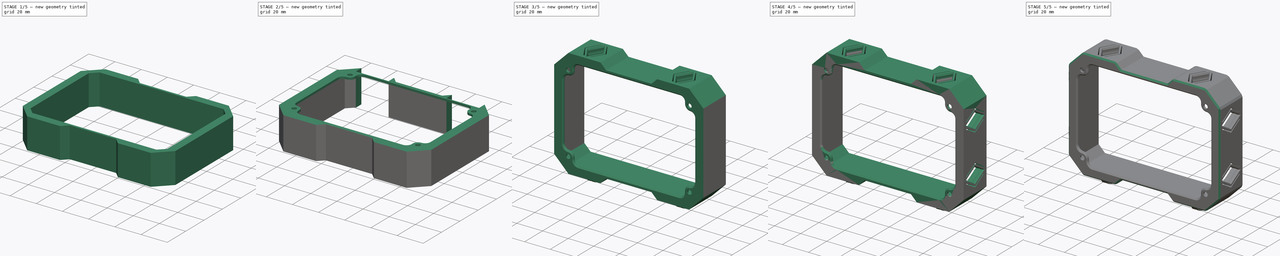
[diagram: build sequence overview — one tinted view per stage of 5, left to right]
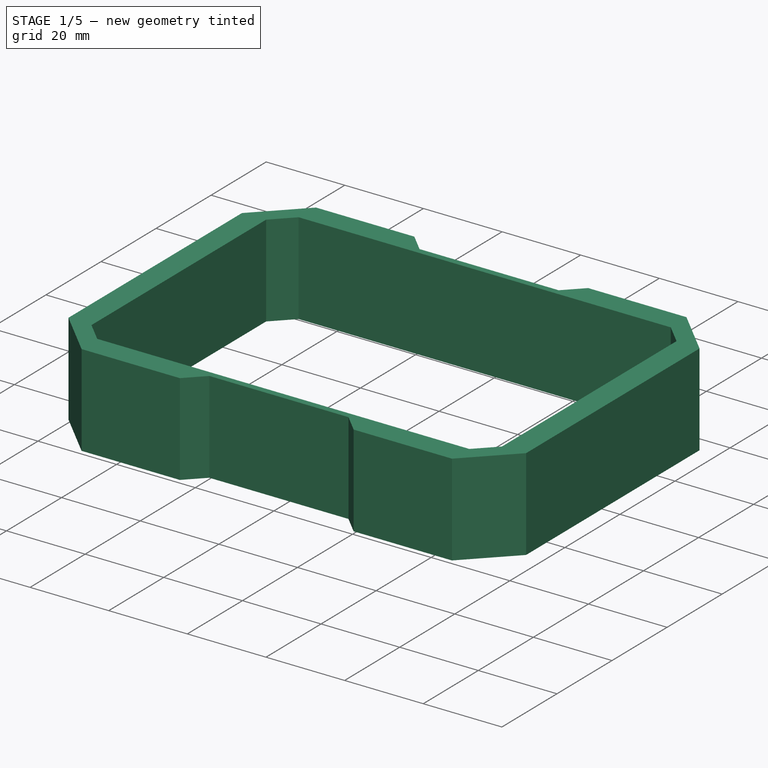
[diagram: stage 1 of 5 — iso view after this stage's code; geometry added in this stage tinted green]
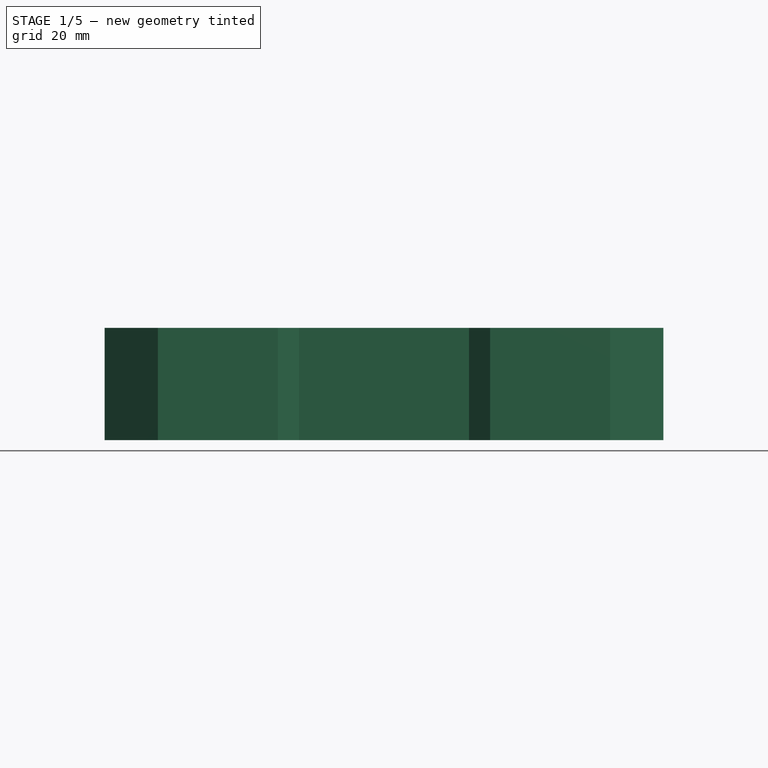
[diagram: stage 1 of 5 — front view after this stage's code; geometry added in this stage tinted green]
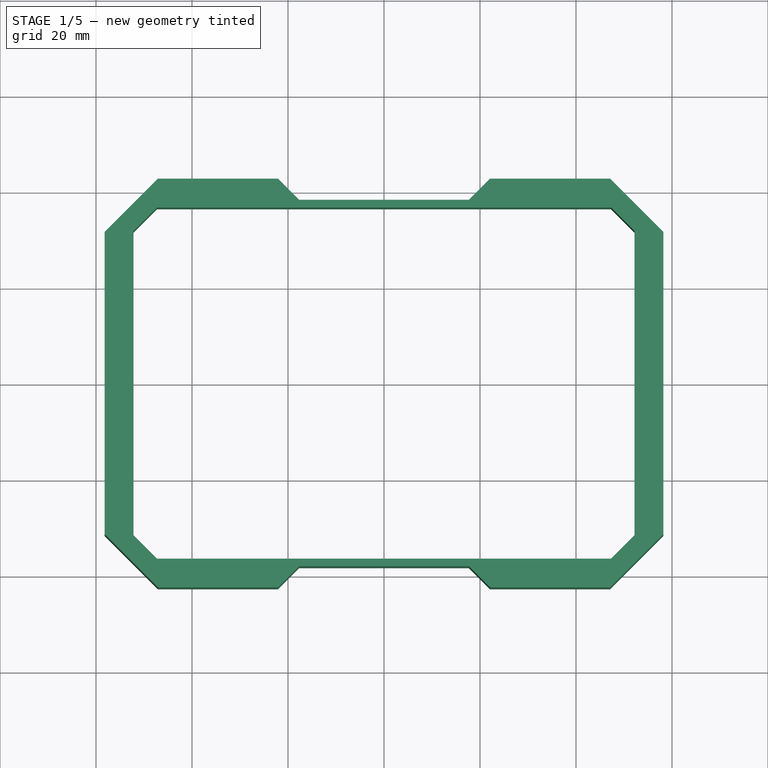
[diagram: stage 1 of 5 — top view after this stage's code; geometry added in this stage tinted green]
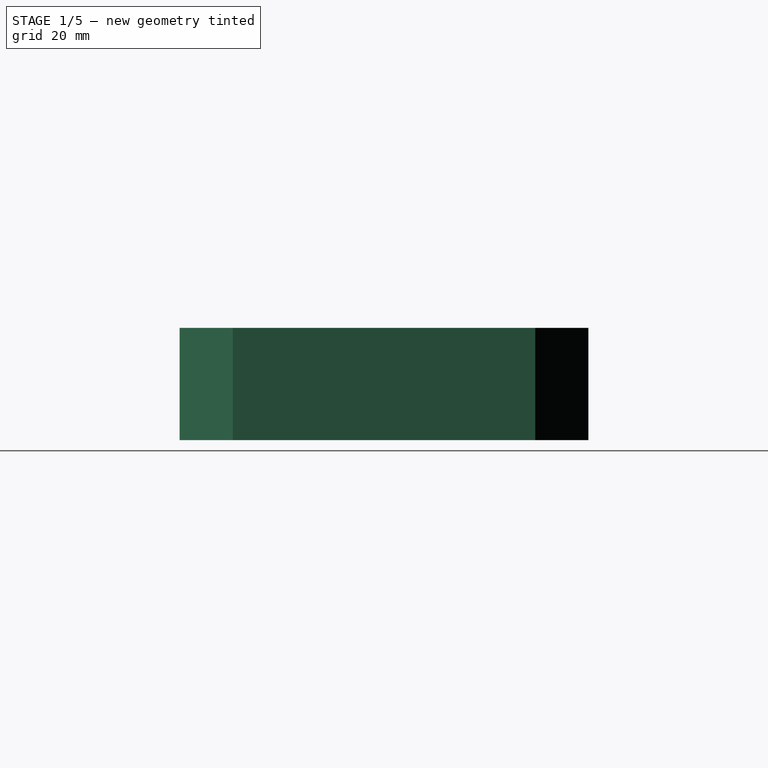
[diagram: stage 1 of 5 — right view after this stage's code; geometry added in this stage tinted green]
FCSTD DOCUMENT  (FreeCAD 1.1R20251111 (Git shallow))
Label: K97-120_DockLink-Frame_front
License: All rights reserved
LicenseURL: https://en.wikipedia.org/wiki/All_rights_reserved
objects: App::Link×9, Sketcher::SketchObject×6, Part::Feature×5, PartDesign::Pocket×4, App::Point×3, PartDesign::Body×3, PartDesign::Chamfer×3, PartDesign::Pad×2, PartDesign::Mirrored×2, Part::MultiFuse×2, PartDesign::FeatureBase×2, PartDesign::Fillet×1
note: 60 computed .brp shape members not serialized (recipe doc carries the construction recipe); baked Part::Feature solids carry a one-line shape summary decoded from their .brp
EXTERNAL_REF file=../../FreeCAD_DElements/DockLink/DockLink_female.FCStd obj=Body
EXTERNAL_REF file=../../FreeCAD_DElements/DockLink/DockLink_male.FCStd obj=Body

FEATURE [Part::Feature] Wire
  shape: bbox 5.6 x 5.6 x 2e-07 mm, 0 faces, 0 solids (baked)
FEATURE [Part::Feature] Wire001
  shape: bbox 5.6 x 5.6 x 2e-07 mm, 0 faces, 0 solids (baked)
FEATURE [Part::Feature] Wire002
  shape: bbox 5.6 x 5.6 x 2e-07 mm, 0 faces, 0 solids (baked)
FEATURE [Part::Feature] Wire003
  shape: bbox 5.6 x 5.6 x 2e-07 mm, 0 faces, 0 solids (baked)
FEATURE [Part::Feature] Wire004
  shape: bbox 104 x 72.99 x 2e-07 mm, 0 faces, 0 solids (baked)
FEATURE [Sketcher::SketchObject] Sketch
  ArcFitTolerance = 1e-06
  ExternalTypes = [0]
  FullyConstrained = true
  MakeInternals = false
  Placement = pos=(0,0,0.75) rot=(0,0,1;0rad)
  sketch-geometry (16):
    g0: ArcOfCircle [constr] CenterX=49.99 CenterY=30.66 CenterZ=0 NormalX=0 NormalY=0 NormalZ=1 AngleXU=0 Radius=2.00394 StartAngle=0.00171116 EndAngle=0.785083
    g1: LineSegment [constr] StartX=51.4075 StartY=32.0766 StartZ=0 EndX=47.58 EndY=35.9 EndZ=0
    g2: ArcOfCircle [constr] CenterX=46.17 CenterY=34.49 CenterZ=0 NormalX=0 NormalY=0 NormalZ=1 AngleXU=0 Radius=1.99404 StartAngle=0.785398 EndAngle=1.57287
    g3: LineSegment [constr] StartX=46.1659 StartY=36.484 StartZ=0 EndX=0 EndY=36.484 EndZ=0
    g4: LineSegment [constr] StartX=51.9939 StartY=30.6634 StartZ=0 EndX=51.9939 EndY=0 EndZ=0
    g5: Circle [constr] CenterX=47.29 CenterY=30.44 CenterZ=0 NormalX=0 NormalY=0 NormalZ=1 AngleXU=0 Radius=1.7
    g6: LineSegment StartX=0 StartY=38.184 StartZ=0 EndX=17.7 EndY=38.184 EndZ=0
    g7: LineSegment StartX=17.7 StartY=38.184 StartZ=0 EndX=22.1 EndY=42.584 EndZ=0
    g8: LineSegment StartX=22.1 StartY=42.584 StartZ=0 EndX=47.1 EndY=42.584 EndZ=0
    g9: LineSegment StartX=0 StartY=38.184 StartZ=0 EndX=0 EndY=36.584 EndZ=0
    g10: LineSegment StartX=0 StartY=36.584 StartZ=0 EndX=47.3197 EndY=36.584 EndZ=0
    g11: LineSegment StartX=47.3197 StartY=36.584 StartZ=0 EndX=52.1939 EndY=31.7149 EndZ=0
    g12: LineSegment StartX=52.1939 StartY=31.7149 StartZ=0 EndX=52.1939 EndY=0 EndZ=0
    g13: LineSegment StartX=47.1 StartY=42.584 StartZ=0 EndX=58.1939 EndY=31.5017 EndZ=0
    g14: LineSegment StartX=58.1939 StartY=31.5017 StartZ=0 EndX=58.1939 EndY=0 EndZ=0
    g15: LineSegment StartX=52.1939 StartY=0 StartZ=0 EndX=58.1939 EndY=0 EndZ=0
  constraints (53):
    c: Coincident(g1,g2)
    c: Coincident(g0,g1)
    c: Coincident(g3,g2)
    c: PointOnObject(g3,g-2)
    c: Horizontal(g3)
    c: Coincident(g4,g0)
    c: PointOnObject(g4,g-1)
    c: Vertical(g4)
    c: Distance(g5,g-1) = 30.44
    c: Distance(g5,g-2) = 47.29
    c: Diameter(g5) = 3.4
    c: Distance(g0,g-1) = 30.66
    c: Distance(g0,g-2) = 49.99
    c: Distance(g2,g-2) = 46.17
    c: Distance(g2,g-1) = 34.49
    c: Distance(g2,g1) = 1.53
    c: Distance(g0,g0) = 1.53
    c: Distance(g1,g1) = 5.41
    c: Angle(g1,g-1) = 0.784875
    c: Distance(g1,g-1) = 35.9
    c: Distance(g1,g-2) = 47.58
    c: PointOnObject(g6,g-2)
    c: Horizontal(g6)
    c: Coincident(g7,g6)
    c: Coincident(g8,g7)
    c: Horizontal(g8)
    c: Coincident(g9,g6)
    c: PointOnObject(g9,g-2)
    c: Coincident(g10,g9)
    c: Horizontal(g10)
    c: Coincident(g11,g10)
    c: Coincident(g12,g11)
    c: PointOnObject(g12,g-1)
    c: Vertical(g12)
    c: Distance(g12,g4) = 0.2
    c: Parallel(g11,g1)
    c: DistanceY(g9,g9) = 1.6
    c: Coincident(g13,g8)
    c: Coincident(g14,g13)
    c: PointOnObject(g14,g-1)
    c: Vertical(g14)
    c: Coincident(g15,g12)
    c: Coincident(g15,g14)
    c: DistanceX(g15,g15) = 6
    c: Parallel(g11,g13)
    c: Angle(g7,g6) = 2.35619
    c: Distance(g10,g8) = 6
    c: DistanceX(g8,g8) = 25
    c: Distance(g3,g10) = 0.1
    c: Distance(g11,g1) = 0.3
    c: DistanceX(g-1,g8) = 47.1
    c: Distance(g5,g-2) = 47.29
    c: Distance(g5,g-1) = 30.44
FEATURE [App::Point] Origin001
  Role = Origin
FEATURE [PartDesign::Pad] Pad
  Direction = (0,0,1)
  Length = 23.4
  Length2 = 10
  Placement = pos=(0,0,0.75) rot=(0,0,1;0rad)
  Profile = -> Sketch
  ReferenceAxis = -> Sketch [N_Axis]
  Refine = true
  Reversed = true
  SideType = 0
  Suppressed = false
  Type = 0
  Type2 = 0
FEATURE [PartDesign::Mirrored] Mirrored
  BaseFeature = -> Pad
  MirrorPlane = -> XZ_Plane
  Placement = pos=(0,0,0.75) rot=(0,0,1;0rad)
  Refine = true
  Suppressed = false
  TransformMode = 1
FEATURE [PartDesign::Mirrored] Mirrored001
  BaseFeature = -> Mirrored
  MirrorPlane = -> YZ_Plane
  Originals = -> [Mirrored]
  Placement = pos=(0,0,0.75) rot=(0,0,1;0rad)
  Refine = true
  Suppressed = false
  TransformMode = 1
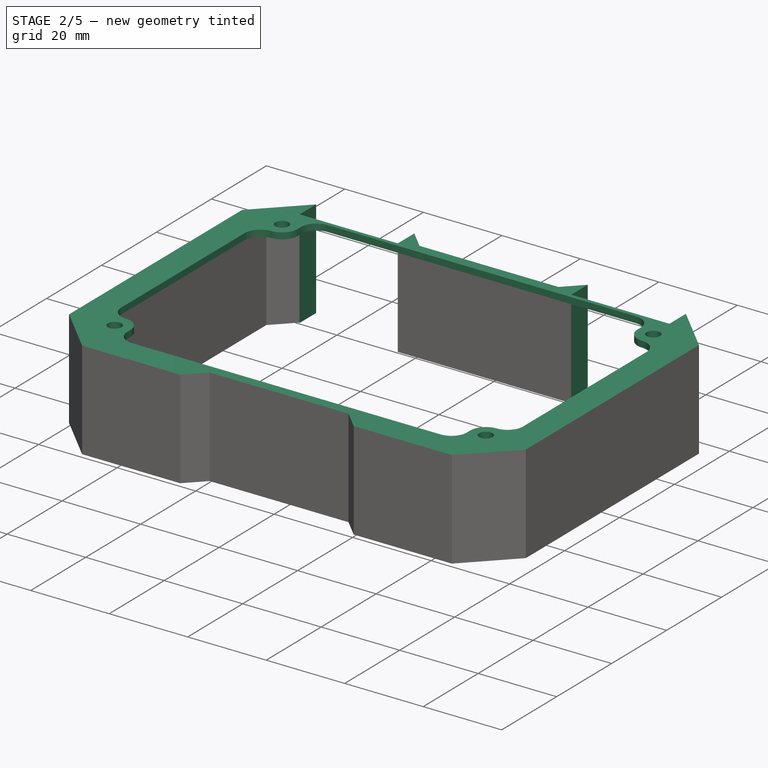
[diagram: stage 2 of 5 — iso view after this stage's code; geometry added in this stage tinted green]
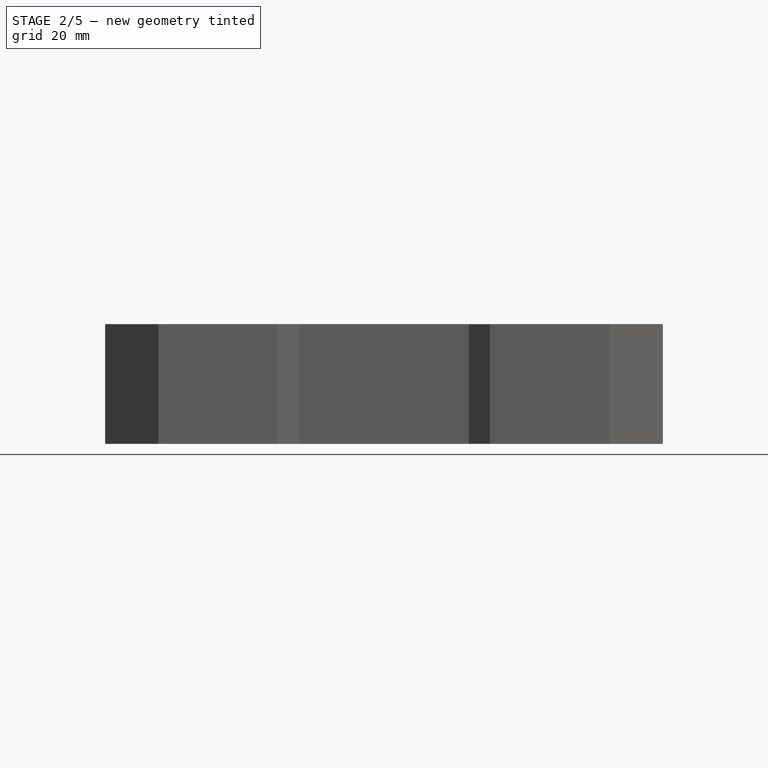
[diagram: stage 2 of 5 — front view after this stage's code; geometry added in this stage tinted green]
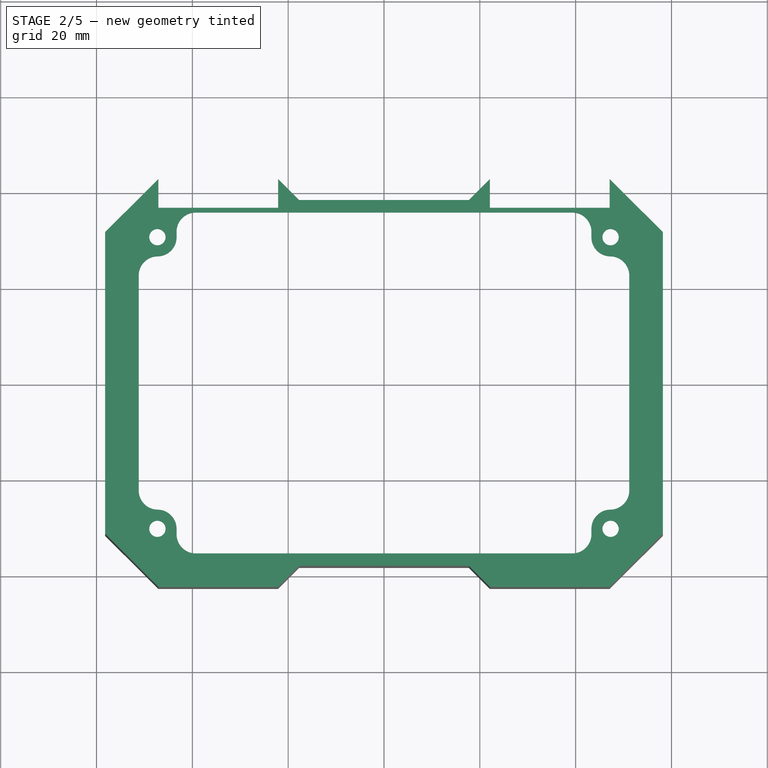
[diagram: stage 2 of 5 — top view after this stage's code; geometry added in this stage tinted green]
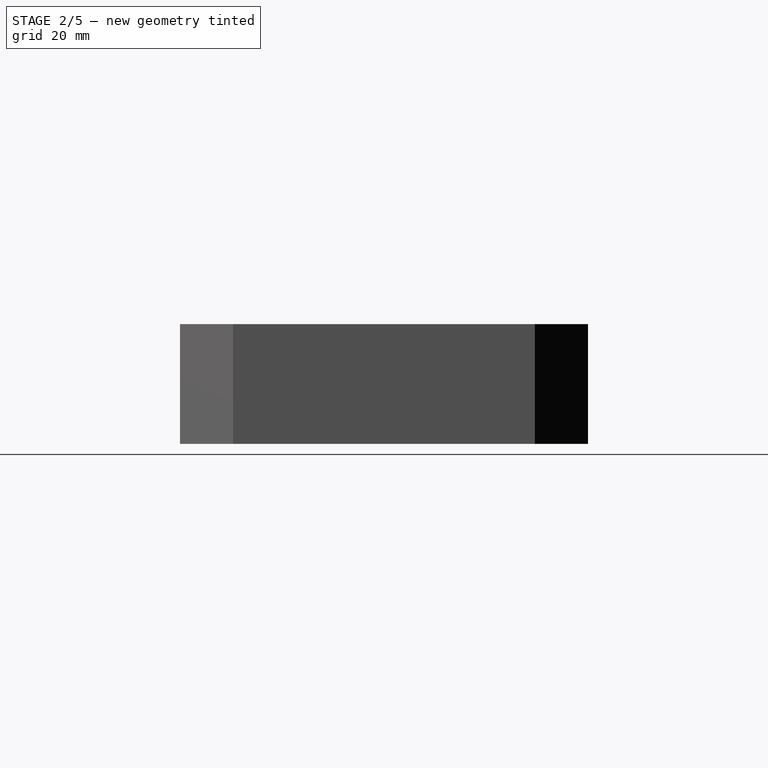
[diagram: stage 2 of 5 — right view after this stage's code; geometry added in this stage tinted green]
FEATURE [Sketcher::SketchObject] Sketch001
  ArcFitTolerance = 1e-06
  AttachmentSupport = -> [Mirrored001]
  ExternalGeometry = -> [Mirrored001]
  ExternalTypes = [0,0,0,0,0,0,0,0,0,0,0,0,0,0,0,0]
  FullyConstrained = true
  MakeInternals = false
  MapMode = 5
  Placement = pos=(0,0,0.75) rot=(0,0,1;0rad)
  sketch-geometry (25):
    g0: LineSegment [constr] StartX=-47.29 StartY=30.44 StartZ=0 EndX=-47.29 EndY=-30.44 EndZ=0
    g1: LineSegment [constr] StartX=-47.29 StartY=-30.44 StartZ=0 EndX=47.29 EndY=-30.44 EndZ=0
    g2: LineSegment [constr] StartX=47.29 StartY=-30.44 StartZ=0 EndX=47.29 EndY=30.44 EndZ=0
    g3: LineSegment [constr] StartX=47.29 StartY=30.44 StartZ=0 EndX=-47.29 EndY=30.44 EndZ=0
    g4: GeomPoint [constr] X=0 Y=0 Z=0
    g5: Circle CenterX=47.29 CenterY=30.44 CenterZ=0 NormalX=0 NormalY=0 NormalZ=1 AngleXU=0 Radius=1.7
    g6: Circle CenterX=47.29 CenterY=-30.44 CenterZ=0 NormalX=0 NormalY=0 NormalZ=1 AngleXU=0 Radius=1.7
    g7: Circle CenterX=-47.29 CenterY=-30.44 CenterZ=0 NormalX=0 NormalY=0 NormalZ=1 AngleXU=0 Radius=1.7
    g8: Circle CenterX=-47.29 CenterY=30.44 CenterZ=0 NormalX=0 NormalY=0 NormalZ=1 AngleXU=0 Radius=1.7
    g9: ArcOfCircle CenterX=-47.29 CenterY=30.44 CenterZ=0 NormalX=0 NormalY=0 NormalZ=1 AngleXU=0 Radius=4 StartAngle=4.71239 EndAngle=6.28319
    g10: ArcOfCircle CenterX=47.29 CenterY=30.44 CenterZ=0 NormalX=0 NormalY=0 NormalZ=1 AngleXU=0 Radius=4 StartAngle=3.14159 EndAngle=4.71239
    g11: ArcOfCircle CenterX=47.29 CenterY=-30.44 CenterZ=0 NormalX=0 NormalY=0 NormalZ=1 AngleXU=0 Radius=4 StartAngle=1.5708 EndAngle=3.14159
    g12: ArcOfCircle CenterX=-47.29 CenterY=-30.44 CenterZ=0 NormalX=0 NormalY=0 NormalZ=1 AngleXU=0 Radius=4 StartAngle=0 EndAngle=1.5708
    g13: LineSegment StartX=-43.29 StartY=30.44 StartZ=0 EndX=-43.29 EndY=35.584 EndZ=0
    g14: LineSegment StartX=-43.29 StartY=35.584 StartZ=0 EndX=43.29 EndY=35.584 EndZ=0
    g15: LineSegment StartX=43.29 StartY=35.584 StartZ=0 EndX=43.29 EndY=30.44 EndZ=0
    g16: LineSegment StartX=47.29 StartY=26.44 StartZ=0 EndX=51.1939 EndY=26.44 EndZ=0
    g17: LineSegment StartX=47.29 StartY=-26.44 StartZ=0 EndX=51.1939 EndY=-26.44 EndZ=0
    g18: LineSegment StartX=51.1939 StartY=-26.44 StartZ=0 EndX=51.1939 EndY=26.44 EndZ=0
    g19: LineSegment StartX=43.29 StartY=-30.44 StartZ=0 EndX=43.29 EndY=-35.584 EndZ=0
    g20: LineSegment StartX=43.29 StartY=-35.584 StartZ=0 EndX=-43.29 EndY=-35.584 EndZ=0
    g21: LineSegment StartX=-43.29 StartY=-35.584 StartZ=0 EndX=-43.29 EndY=-30.44 EndZ=0
    g22: LineSegment StartX=-47.29 StartY=-26.44 StartZ=0 EndX=-51.1939 EndY=-26.44 EndZ=0
    g23: LineSegment StartX=-51.1939 StartY=-26.44 StartZ=0 EndX=-51.1939 EndY=26.44 EndZ=0
    g24: LineSegment StartX=-51.1939 StartY=26.44 StartZ=0 EndX=-47.29 EndY=26.44 EndZ=0
  constraints (68):
    c: Coincident(g0,g1)
    c: Coincident(g1,g2)
    c: Coincident(g2,g3)
    c: Coincident(g3,g0)
    c: Vertical(g0)
    c: Vertical(g2)
    c: Horizontal(g1)
    c: Horizontal(g3)
    c: Symmetric(g2,g0,g4)
    c: Coincident(g4,g-1)
    c: Distance(g2,g-2) = 47.29
    c: Distance(g3,g-1) = 30.44
    c: Coincident(g5,g2)
    c: Coincident(g6,g1)
    c: Coincident(g7,g0)
    c: Coincident(g8,g0)
    c: Equal(g8,g5)
    c: Equal(g5,g6)
    c: Equal(g7,g6)
    c: Diameter(g6) = 3.4
    c: Coincident(g9,g0)
    c: PointOnObject(g9,g0)
    c: PointOnObject(g9,g3)
    c: Coincident(g10,g2)
    c: PointOnObject(g10,g3)
    c: PointOnObject(g10,g2)
    c: Coincident(g11,g1)
    c: PointOnObject(g11,g1)
    c: PointOnObject(g11,g2)
    c: Coincident(g12,g0)
    c: PointOnObject(g12,g0)
    c: PointOnObject(g12,g1)
    c: Radius(g9) = 4
    c: Equal(g9,g10)
    c: Equal(g11,g10)
    c: Equal(g12,g9)
    c: Coincident(g13,g9)
    c: Vertical(g13)
    c: Coincident(g14,g13)
    c: Horizontal(g14)
    c: Coincident(g15,g14)
    c: Coincident(g15,g10)
    c: Coincident(g16,g10)
    c: Horizontal(g16)
    c: Coincident(g17,g11)
    c: Horizontal(g17)
    c: Coincident(g18,g17)
    c: Coincident(g18,g16)
    c: Vertical(g18)
    c: Coincident(g19,g11)
    c: Vertical(g19)
    c: Coincident(g20,g19)
    c: Horizontal(g20)
    c: Coincident(g21,g20)
    c: Coincident(g21,g12)
    c: Vertical(g21)
    c: Coincident(g22,g12)
    c: Horizontal(g22)
    c: Coincident(g23,g22)
    c: Vertical(g23)
    c: Coincident(g24,g23)
    c: Coincident(g24,g9)
    c: Horizontal(g24)
    c: Distance(g-7,g14) = 2.6
    c: Vertical(g15)
    c: Distance(g-11,g18) = 7
    c: Distance(g20,g-15) = 2.6
    c: Distance(g-5,g23) = 7
FEATURE [PartDesign::Pad] Pad001
  BaseFeature = -> Mirrored001
  Direction = (0,0,1)
  Length = 1.6
  Length2 = 10
  Placement = pos=(0,0,0.75) rot=(0,0,1;0rad)
  Profile = -> Sketch001
  ReferenceAxis = -> Sketch001 [N_Axis]
  Refine = true
  SideType = 0
  Suppressed = false
  Type = 0
  Type2 = 0
FEATURE [PartDesign::Fillet] Fillet
  Base = -> Pad001 [Edge107,Edge104,Edge108,Edge111,Edge112,Edge99,Edge103,Edge100]
  BaseFeature = -> Pad001
  Placement = pos=(0,0,0.75) rot=(0,0,1;0rad)
  Radius = 4
  Refine = true
  SupportTransform = false
  Suppressed = false
  UseAllEdges = false
FEATURE [Sketcher::SketchObject] Sketch002
  ArcFitTolerance = 1e-06
  AttachmentSupport = -> [Fillet]
  ExternalGeometry = -> [Fillet]
  ExternalTypes = [0,0,0,0,0,0,0,0]
  FullyConstrained = true
  MakeInternals = false
  MapMode = 5
  Placement = pos=(0,42.584,0.75) rot=(0,0.707107,0.707107;3.14159rad)
FEATURE [PartDesign::Pocket] Pocket
  BaseFeature = -> Fillet
  Direction = (0,-1,2e-16)
  Length = 6
  Length2 = 5
  Placement = pos=(0,0,0.75) rot=(0,0,1;0rad)
  Profile = -> Sketch002
  ReferenceAxis = -> Sketch002 [N_Axis]
  Refine = true
  SideType = 0
  Suppressed = false
  Type = 0
  Type2 = 0
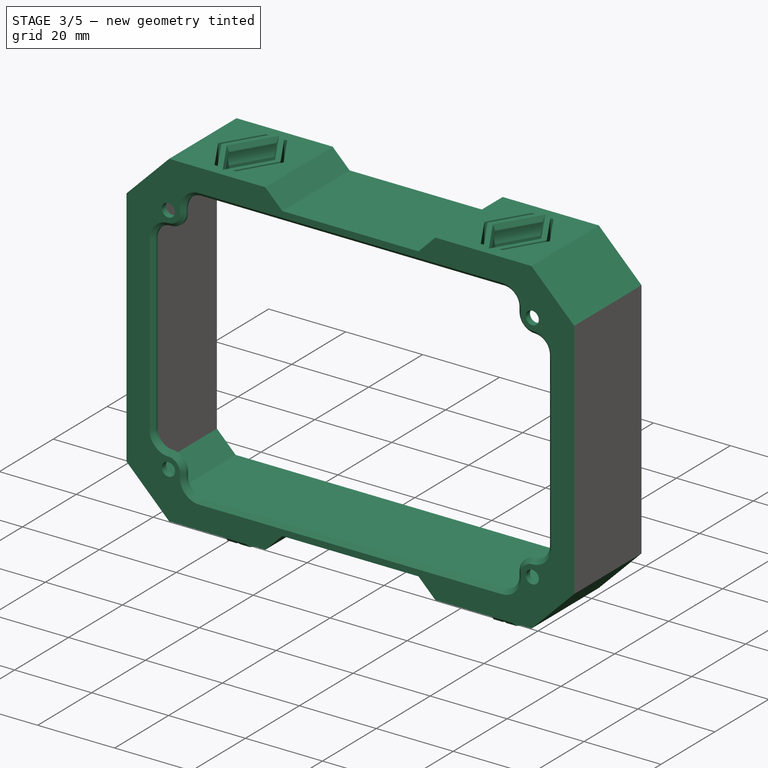
[diagram: stage 3 of 5 — iso view after this stage's code; geometry added in this stage tinted green]
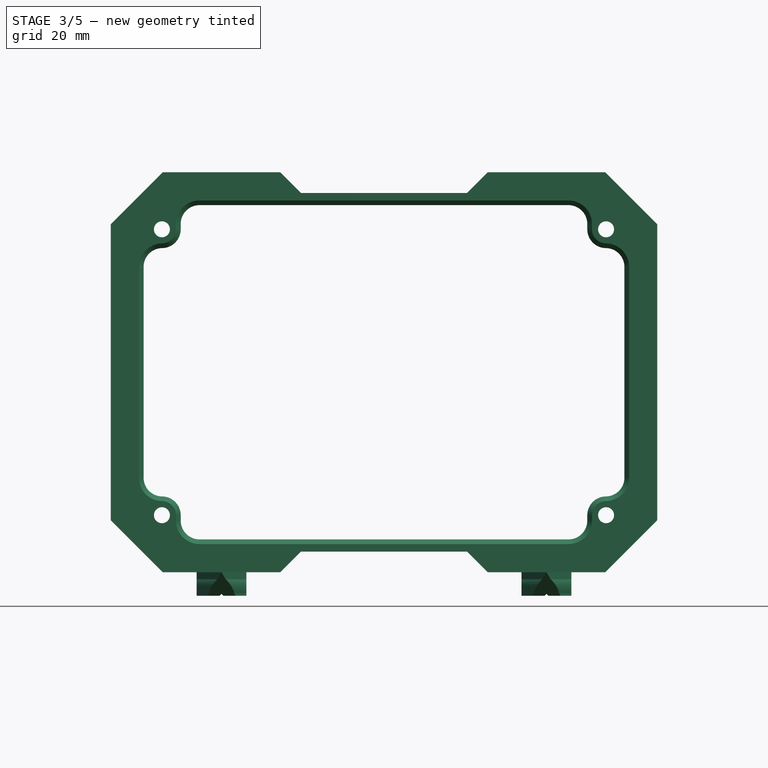
[diagram: stage 3 of 5 — front view after this stage's code; geometry added in this stage tinted green]
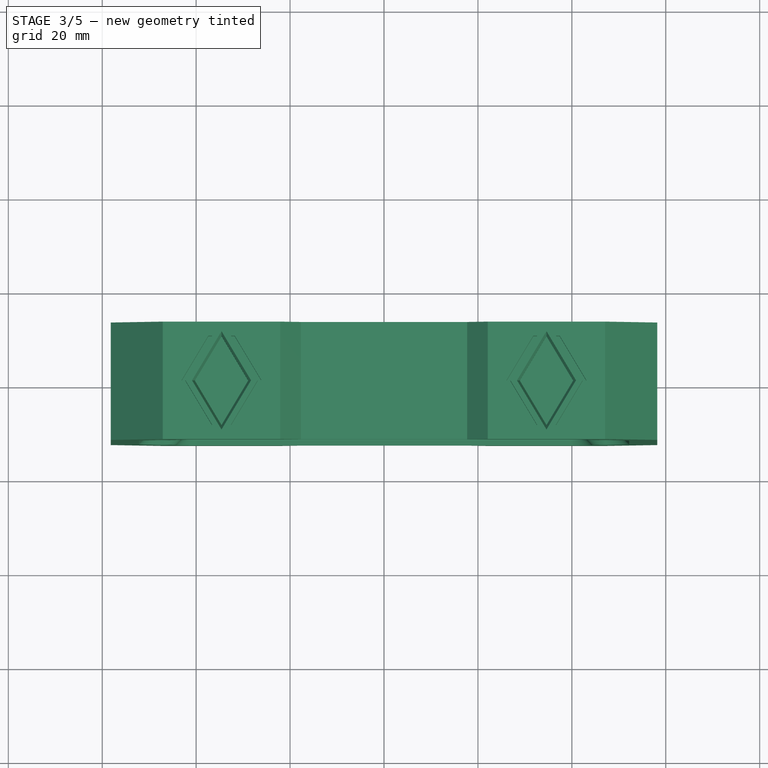
[diagram: stage 3 of 5 — top view after this stage's code; geometry added in this stage tinted green]
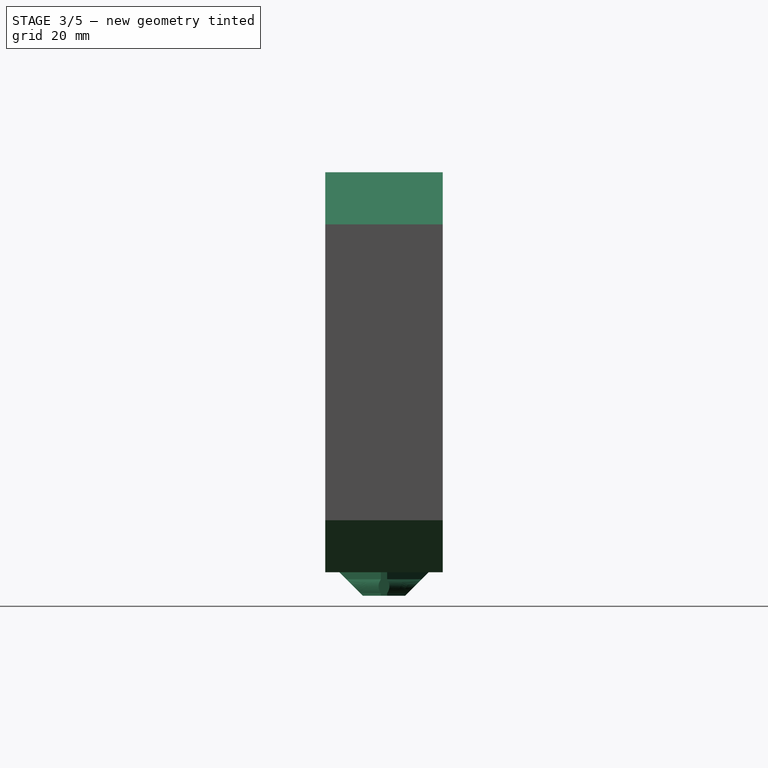
[diagram: stage 3 of 5 — right view after this stage's code; geometry added in this stage tinted green]
FEATURE [Sketcher::SketchObject] Sketch003
  ArcFitTolerance = 1e-06
  AttachmentSupport = -> [Pocket]
  ExternalGeometry = -> [Pocket]
  ExternalTypes = [0,0,0,0,0,0,0,0]
  FullyConstrained = true
  MakeInternals = false
  MapMode = 5
  Placement = pos=(0,-42.584,0.75) rot=(1,0,0;1.5708rad)
FEATURE [PartDesign::Pocket] Pocket001
  BaseFeature = -> Pocket
  Direction = (0,1,-2e-16)
  Length = 6
  Length2 = 5
  Placement = pos=(0,0,0.75) rot=(0,0,1;0rad)
  Profile = -> Sketch003
  ReferenceAxis = -> Sketch003 [N_Axis]
  Refine = true
  SideType = 0
  Suppressed = false
  Type = 0
  Type2 = 0
FEATURE [PartDesign::Body] Body
  AllowCompound = true
  Group = -> [Sketch,Pad,Mirrored,Mirrored001,Sketch001,Pad001,Fillet,Sketch002,Pocket,Sketch003,Pocket001]
  Origin = -> Origin
  Tip = -> Pocket001
FEATURE [App::Link] Body001
  LinkPlacement = pos=(0,-10.15,-10.15) rot=(1,0,0;1.5708rad)
  LinkedObject = -> Body
  Placement = pos=(0,-10.15,-10.15) rot=(1,0,0;1.5708rad)
FEATURE [App::Link] Body_DockLink_female
  LinkPlacement = pos=(-34.6,-5.96048e-06,26.434) rot=(1,0,0;0rad)
  LinkedObject = -> <external ../../FreeCAD_DElements/DockLink/DockLink_female.FCStd>#Body
  Placement = pos=(-34.6,-5.96048e-06,26.434) rot=(1,0,0;0rad)
FEATURE [App::Link] Body_DockLink_female001
  LinkPlacement = pos=(34.6,-5.96048e-06,26.434) rot=(1,0,0;0rad)
  LinkedObject = -> <external ../../FreeCAD_DElements/DockLink/DockLink_female.FCStd>#Body
  Placement = pos=(34.6,-5.96048e-06,26.434) rot=(1,0,0;0rad)
FEATURE [App::Link] Body_DockLink_male
  LinkPlacement = pos=(-34.6,7.38626e-06,-52.734) rot=(0,1,0;3.14159rad)
  LinkedObject = -> <external ../../FreeCAD_DElements/DockLink/DockLink_male.FCStd>#Body
  Placement = pos=(-34.6,7.38626e-06,-52.734) rot=(0,1,0;3.14159rad)
FEATURE [App::Link] Body_DockLink_male001
  LinkPlacement = pos=(34.6,7.38626e-06,-52.734) rot=(0,1,0;3.14159rad)
  LinkedObject = -> <external ../../FreeCAD_DElements/DockLink/DockLink_male.FCStd>#Body
  Placement = pos=(34.6,7.38626e-06,-52.734) rot=(0,1,0;3.14159rad)
FEATURE [Part::MultiFuse] Fusion
  Refine = true
  Shapes = -> [Body001,Body_DockLink_female,Body_DockLink_female001,Body_DockLink_male,Body_DockLink_male001]
FEATURE [App::Point] Origin005  label="Origin006"
  Role = Origin
FEATURE [PartDesign::FeatureBase] BaseFeature
  BaseFeature = -> Fusion
  Suppressed = false
FEATURE [PartDesign::Chamfer] Chamfer
  Angle = 45
  Base = -> BaseFeature [Edge61]
  BaseFeature = -> BaseFeature
  ChamferType = 0
  FlipDirection = false
  Refine = true
  Size = 1
  Size2 = 1
  SupportTransform = false
  Suppressed = false
  UseAllEdges = false
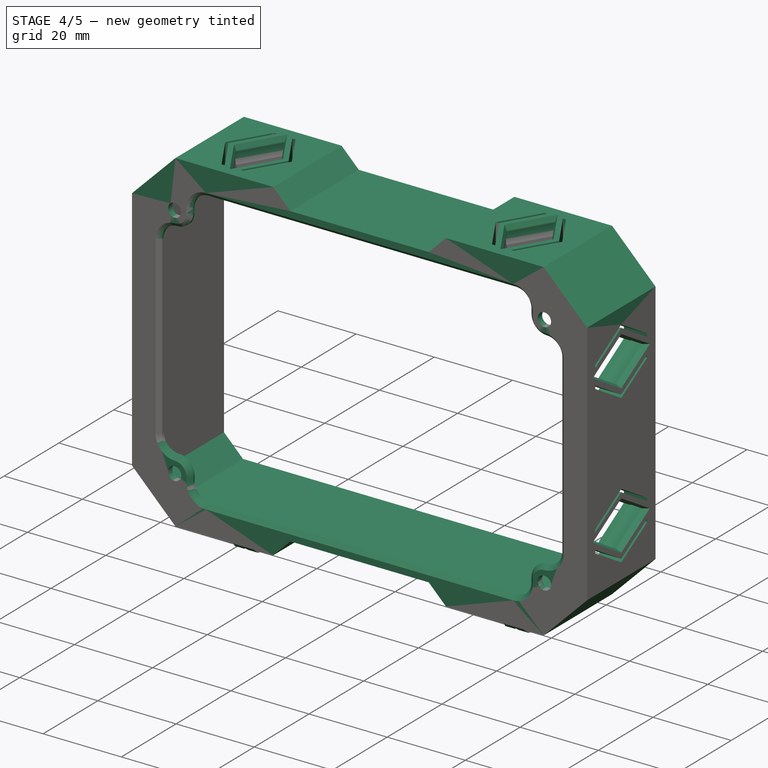
[diagram: stage 4 of 5 — iso view after this stage's code; geometry added in this stage tinted green]
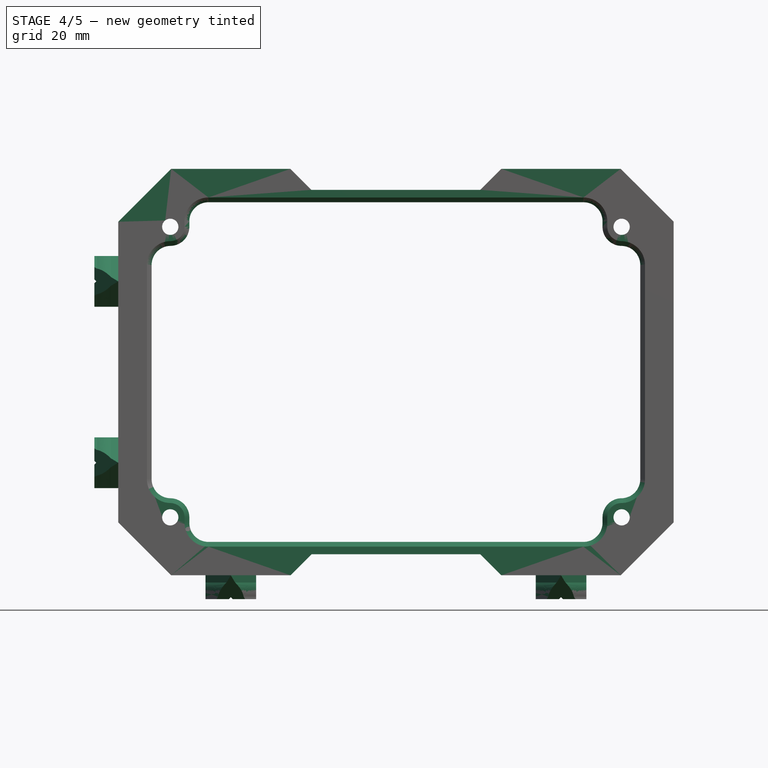
[diagram: stage 4 of 5 — front view after this stage's code; geometry added in this stage tinted green]
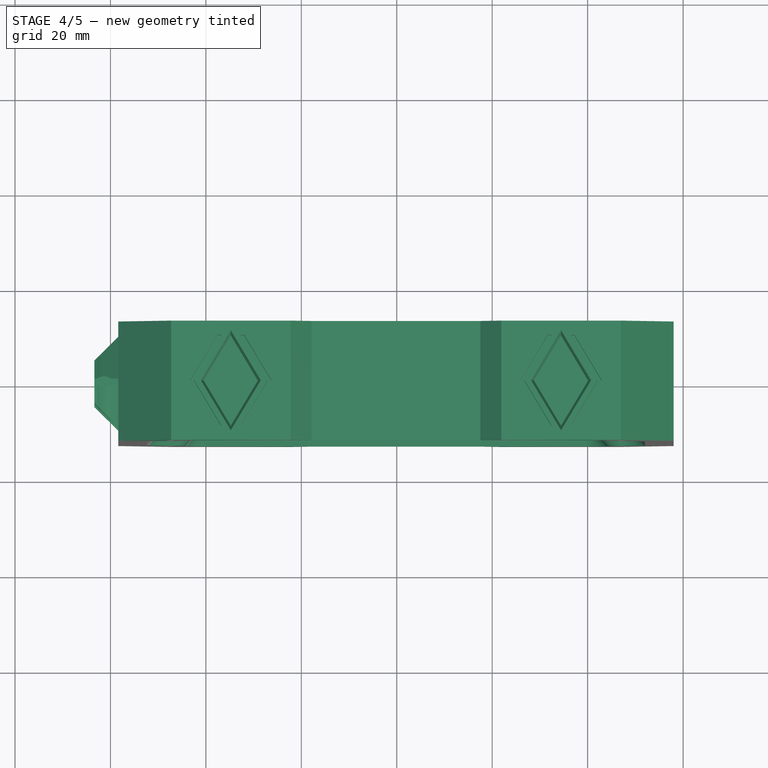
[diagram: stage 4 of 5 — top view after this stage's code; geometry added in this stage tinted green]
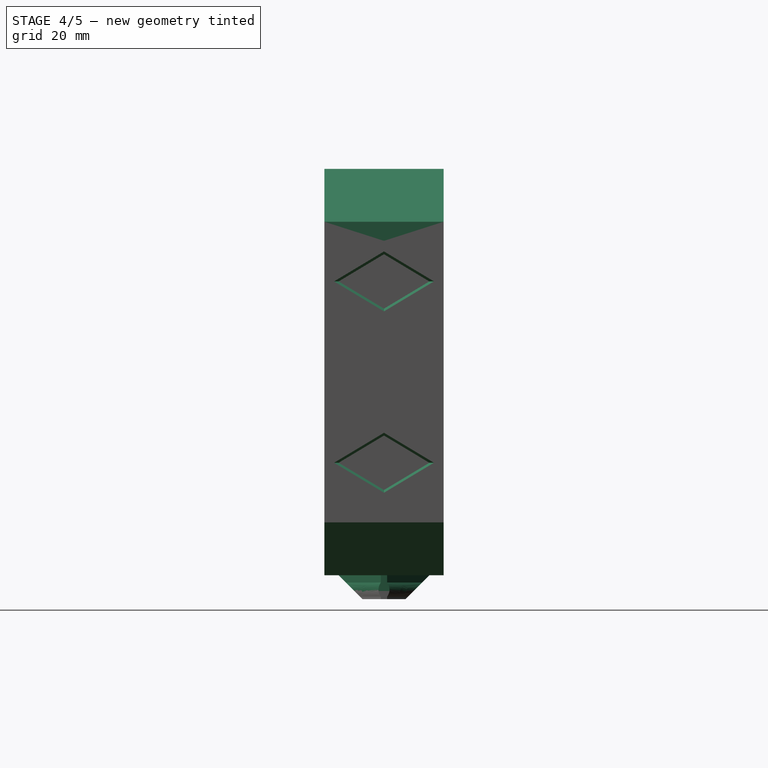
[diagram: stage 4 of 5 — right view after this stage's code; geometry added in this stage tinted green]
FEATURE [Sketcher::SketchObject] Sketch004
  ArcFitTolerance = 1e-06
  AttachmentSupport = -> [Chamfer]
  ExternalGeometry = -> [Chamfer]
  ExternalTypes = [0,0,0,0]
  FullyConstrained = true
  MakeInternals = false
  MapMode = 5
  Placement = pos=(-58.1939,1.68e-14,1.31e-14) rot=(0.57735,-0.57735,-0.57735;2.0944rad)
  sketch-geometry (6):
    g0: LineSegment StartX=-12.5 StartY=-16.6517 StartZ=0 EndX=12.5 EndY=-16.6517 EndZ=0
    g1: LineSegment StartX=-12.5 StartY=-3.64829 StartZ=0 EndX=12.5 EndY=-3.64829 EndZ=0
    g2: LineSegment StartX=-12.5 StartY=-3.64829 StartZ=0 EndX=-12.5 EndY=21.3517 EndZ=0
    g3: LineSegment StartX=12.5 StartY=21.3517 StartZ=0 EndX=12.5 EndY=-3.64829 EndZ=0
    g4: LineSegment StartX=-12.5 StartY=-16.6517 StartZ=0 EndX=-12.5 EndY=-41.6517 EndZ=0
    g5: LineSegment StartX=12.5 StartY=-16.6517 StartZ=0 EndX=12.5 EndY=-41.6517 EndZ=0
  constraints (16):
    c: PointOnObject(g0,g-5)
    c: PointOnObject(g0,g-6)
    c: Horizontal(g0)
    c: PointOnObject(g1,g-5)
    c: PointOnObject(g1,g-6)
    c: Horizontal(g1)
    c: DistanceY(g1,g-5) = 25
    c: DistanceY(g-5,g0) = 25
    c: Coincident(g2,g1)
    c: Coincident(g2,g-5)
    c: Coincident(g3,g-6)
    c: Coincident(g3,g1)
    c: Coincident(g4,g0)
    c: Coincident(g4,g-5)
    c: Coincident(g5,g0)
    c: Coincident(g5,g-6)
FEATURE [PartDesign::Pocket] Pocket002
  BaseFeature = -> Chamfer
  Direction = (1,0,0)
  Length = 6
  Length2 = 5
  Profile = -> Sketch004
  ReferenceAxis = -> Sketch004 [N_Axis]
  Refine = true
  SideType = 0
  Suppressed = false
  Type = 0
  Type2 = 0
FEATURE [Sketcher::SketchObject] Sketch005
  ArcFitTolerance = 1e-06
  AttachmentSupport = -> [Pocket002]
  ExternalGeometry = -> [Pocket002]
  ExternalTypes = [0,0,0,0]
  FullyConstrained = true
  MakeInternals = false
  MapMode = 5
  Placement = pos=(58.1939,0,0) rot=(0.57735,0.57735,0.57735;2.0944rad)
  sketch-geometry (6):
    g0: LineSegment StartX=-12.5 StartY=-3.64829 StartZ=0 EndX=12.5 EndY=-3.64829 EndZ=0
    g1: LineSegment StartX=-12.5 StartY=-16.6517 StartZ=0 EndX=12.5 EndY=-16.6517 EndZ=0
    g2: LineSegment StartX=-12.5 StartY=21.3517 StartZ=0 EndX=-12.5 EndY=-3.64829 EndZ=0
    g3: LineSegment StartX=12.5 StartY=21.3517 StartZ=0 EndX=12.5 EndY=-3.64829 EndZ=0
    g4: LineSegment StartX=-12.5 StartY=-16.6517 StartZ=0 EndX=-12.5 EndY=-41.6517 EndZ=0
    g5: LineSegment StartX=12.5 StartY=-16.6517 StartZ=0 EndX=12.5 EndY=-41.6517 EndZ=0
  constraints (16):
    c: PointOnObject(g0,g-5)
    c: PointOnObject(g0,g-6)
    c: Horizontal(g0)
    c: PointOnObject(g1,g-5)
    c: PointOnObject(g1,g-6)
    c: Horizontal(g1)
    c: DistanceY(g-6,g1) = 25
    c: DistanceY(g0,g-6) = 25
    c: Coincident(g2,g-5)
    c: Coincident(g2,g0)
    c: Coincident(g3,g-6)
    c: Coincident(g3,g0)
    c: Coincident(g4,g1)
    c: Coincident(g4,g-5)
    c: Coincident(g5,g1)
    c: Coincident(g5,g-6)
FEATURE [PartDesign::Pocket] Pocket003
  BaseFeature = -> Pocket002
  Direction = (-1,0,0)
  Length = 6
  Length2 = 5
  Profile = -> Sketch005
  ReferenceAxis = -> Sketch005 [N_Axis]
  Refine = true
  SideType = 0
  Suppressed = false
  Type = 0
  Type2 = 0
FEATURE [PartDesign::Body] Body002
  AllowCompound = true
  BaseFeature = -> Fusion
  Group = -> [BaseFeature,Chamfer,Sketch004,Pocket002,Sketch005,Pocket003]
  Origin = -> Origin004
  Placement = pos=(-0.172249,-0.214718,3.51786) rot=(0,0,1;0rad)
  Tip = -> Pocket003
FEATURE [App::Link] Body_DockLink_male002
  LinkPlacement = pos=(-58.3662,-0.214721,12.3696) rot=(0,1,0;4.71239rad)
  LinkedObject = -> <external ../../FreeCAD_DElements/DockLink/DockLink_male.FCStd>#Body
  Placement = pos=(-58.3662,-0.214721,12.3696) rot=(0,1,0;4.71239rad)
FEATURE [App::Link] Body_DockLink_female002
  LinkPlacement = pos=(52.0217,-0.214721,12.3696) rot=(0,1,0;1.5708rad)
  LinkedObject = -> <external ../../FreeCAD_DElements/DockLink/DockLink_female.FCStd>#Body
  Placement = pos=(52.0217,-0.214721,12.3696) rot=(0,1,0;1.5708rad)
FEATURE [App::Link] Body_DockLink_male003
  LinkPlacement = pos=(-58.3662,-0.214714,-25.6338) rot=(0,-1,0;1.5708rad)
  LinkedObject = -> <external ../../FreeCAD_DElements/DockLink/DockLink_male.FCStd>#Body
  Placement = pos=(-58.3662,-0.214714,-25.6338) rot=(0,-1,0;1.5708rad)
FEATURE [App::Link] Body_DockLink_female003
  LinkPlacement = pos=(52.0217,-0.214714,-25.6338) rot=(0,1,0;1.5708rad)
  LinkedObject = -> <external ../../FreeCAD_DElements/DockLink/DockLink_female.FCStd>#Body
  Placement = pos=(52.0217,-0.214714,-25.6338) rot=(0,1,0;1.5708rad)
FEATURE [Part::MultiFuse] Fusion001
  Refine = true
  Shapes = -> [Body002,Body_DockLink_male002,Body_DockLink_female002,Body_DockLink_male003,Body_DockLink_female003]
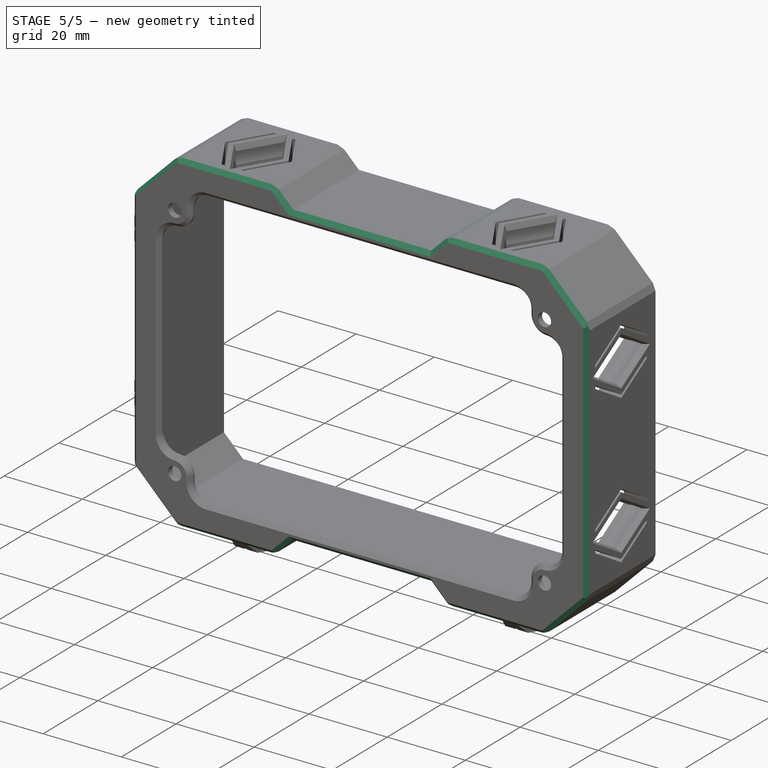
[diagram: stage 5 of 5 — iso view after this stage's code; geometry added in this stage tinted green]
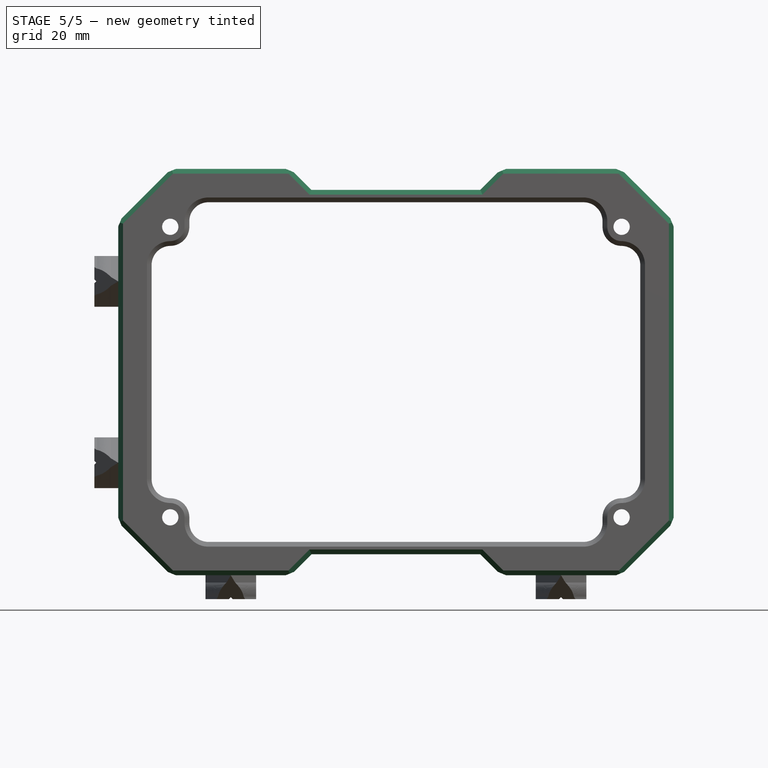
[diagram: stage 5 of 5 — front view after this stage's code; geometry added in this stage tinted green]
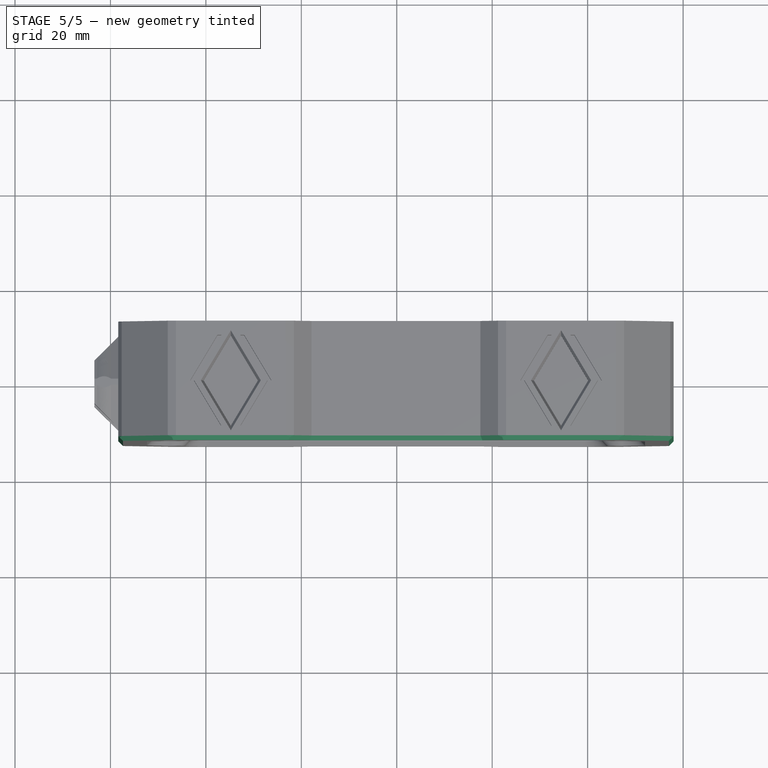
[diagram: stage 5 of 5 — top view after this stage's code; geometry added in this stage tinted green]
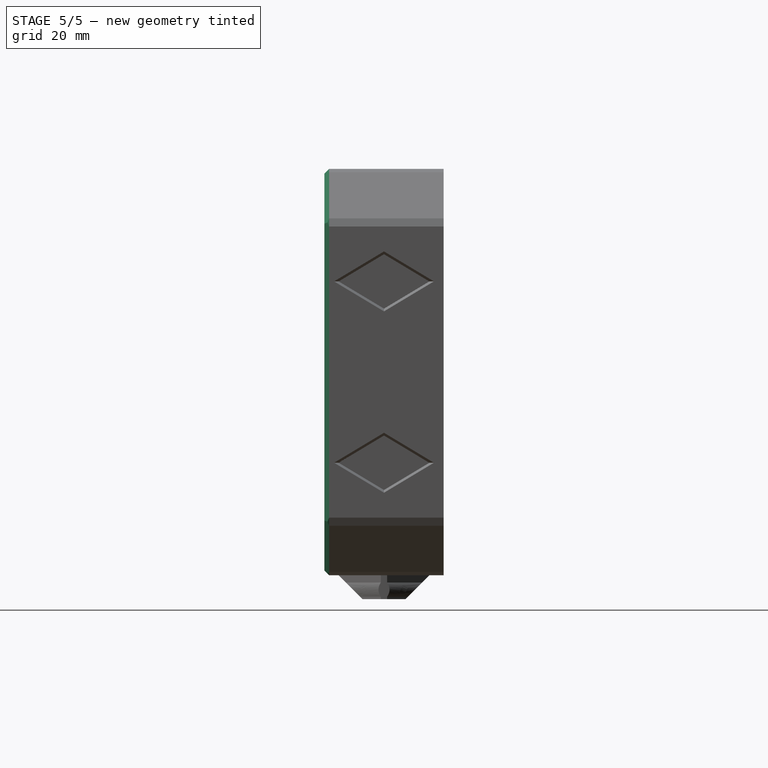
[diagram: stage 5 of 5 — right view after this stage's code; geometry added in this stage tinted green]
FEATURE [App::Point] Origin007  label="Origin009"
  Role = Origin
FEATURE [PartDesign::FeatureBase] BaseFeature001
  BaseFeature = -> Fusion001
  Suppressed = false
FEATURE [PartDesign::Chamfer] Chamfer001
  Angle = 45
  Base = -> BaseFeature001 [Edge161,Edge160,Edge159,Edge158,Edge157,Edge156,Edge155,Edge154,Edge153,Edge3,Edge6,Edge15,Edge17,Edge20,Edge24,Edge32]
  BaseFeature = -> BaseFeature001
  ChamferType = 0
  FlipDirection = false
  Refine = true
  Size = 1
  Size2 = 1
  SupportTransform = false
  Suppressed = false
  UseAllEdges = false
FEATURE [PartDesign::Chamfer] Chamfer002
  Angle = 45
  Base = -> Chamfer001 [Edge216,Edge229,Edge232,Edge254,Edge87,Edge11,Edge212,Edge204,Edge202,Edge80,Edge4,Edge1]
  BaseFeature = -> Chamfer001
  ChamferType = 0
  FlipDirection = false
  Refine = true
  Size = 1
  Size2 = 1
  SupportTransform = false
  Suppressed = false
  UseAllEdges = false
FEATURE [PartDesign::Body] Body003  label="K97-120_DockLink-Frame_front"
  AllowCompound = true
  BaseFeature = -> Fusion001
  Group = -> [BaseFeature001,Chamfer001,Chamfer002]
  Origin = -> Origin006
  Tip = -> Chamfer002
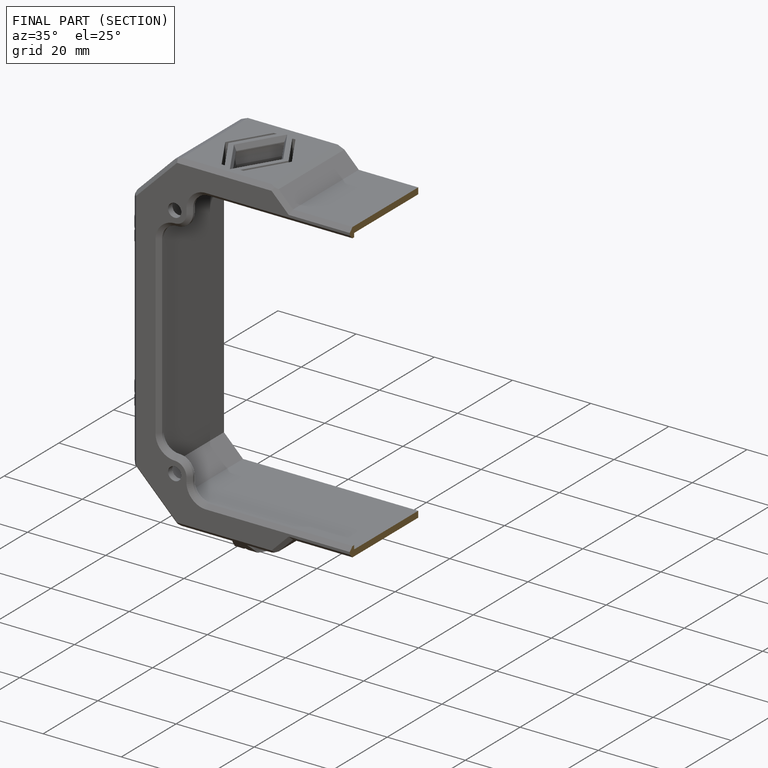
[diagram: finished part — half-section view (interior)]
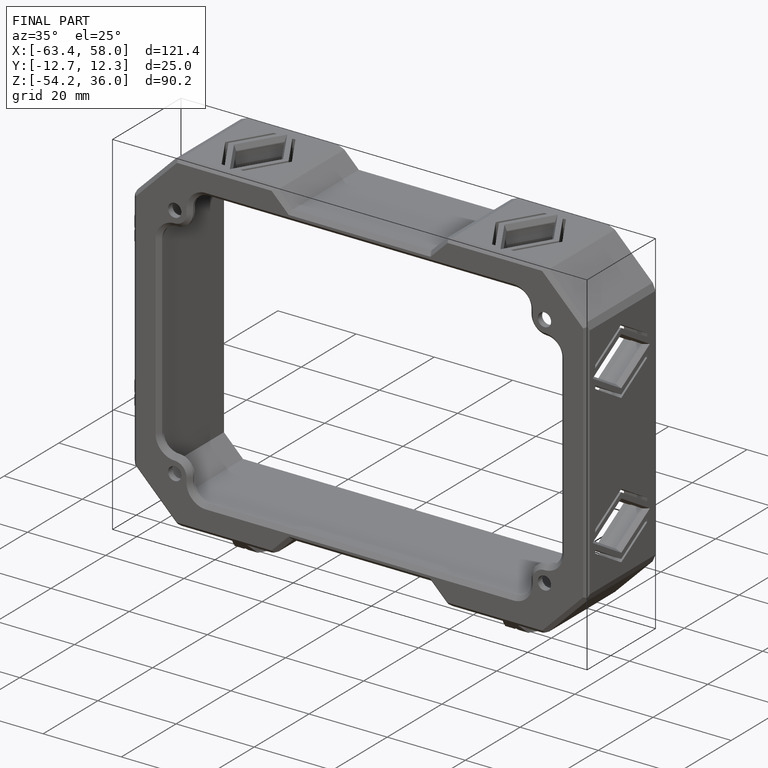
[diagram: finished part — iso view with bounding-box wireframe]
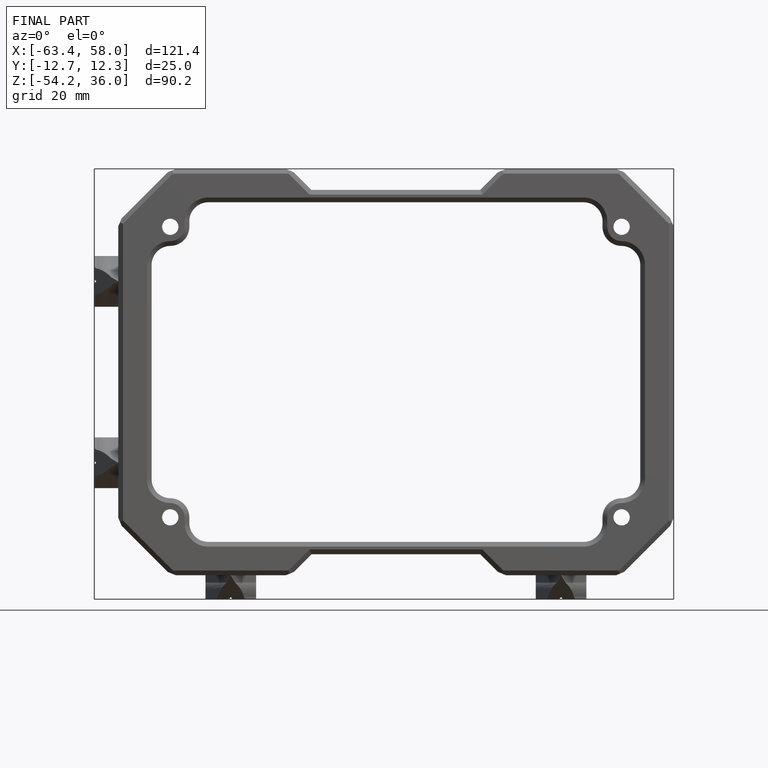
[diagram: finished part — front view with bounding-box wireframe]
